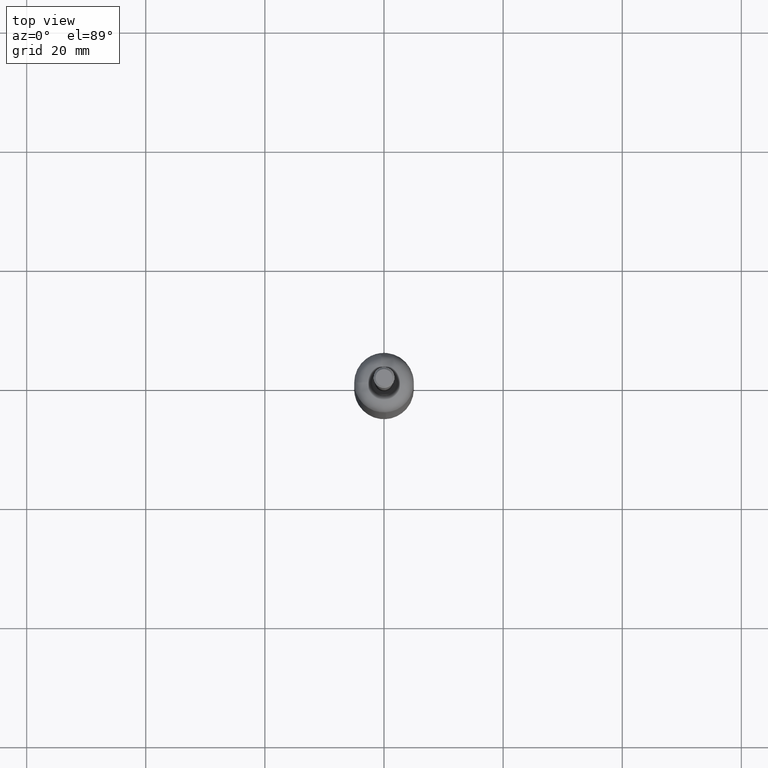
[diagram: clean part render]
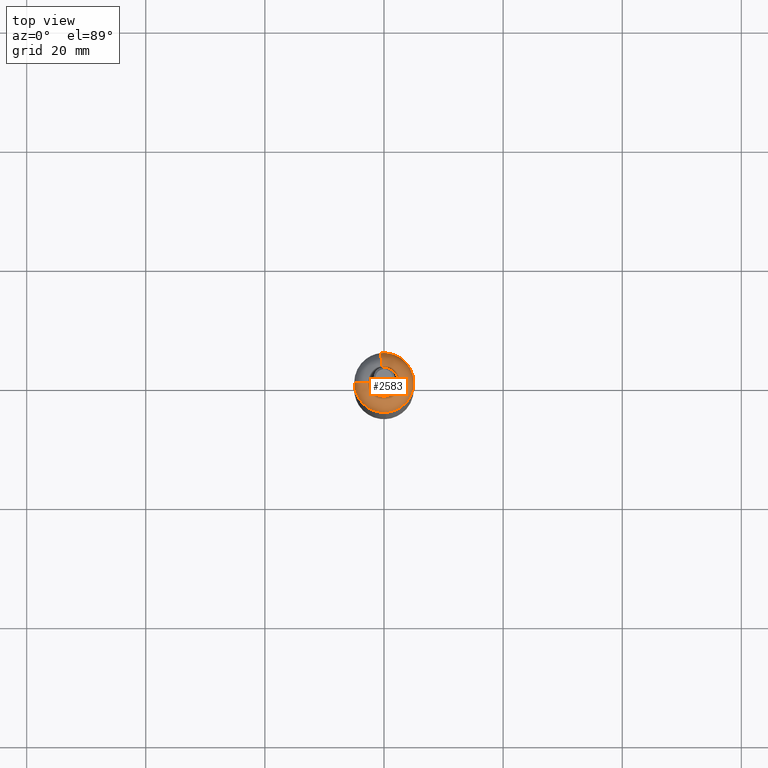
[diagram: same view with one face highlighted and labeled with its STEP entity id]
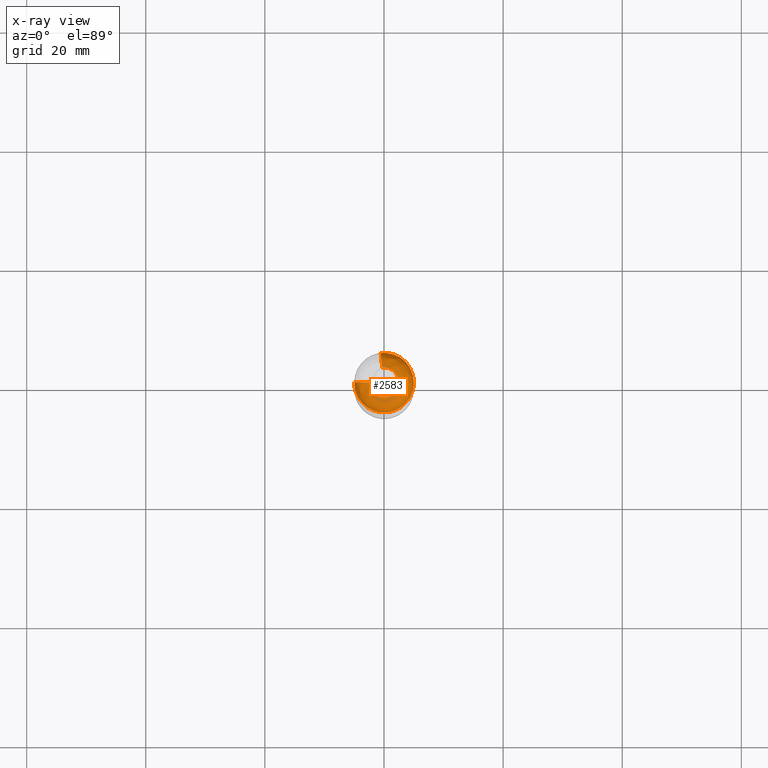
[diagram: x-ray of the same camera — body ghosted, the highlighted face saturated]
A machine part, top view. The second image highlights one B-rep face of the part: STEP entity #2583.
The next image is the same camera in x-ray: the body ghosted, the highlighted face saturated — about 0% of this face is hidden behind the body in this view.
In plain terms, the highlighted face is a freeform B-spline surface patch.
Its self-contained STEP definition (entity closure, byte-faithful):
#1226=CARTESIAN_POINT('',(-4.680717893870430,-1.758089871990486,-2.499999999999997));
#1227=VERTEX_POINT('',#1226);
#1233=CARTESIAN_POINT('',(-4.999999999999431,0.0,-2.500000000000000));
#1234=VERTEX_POINT('',#1233);
#1235=CARTESIAN_POINT('',(-4.680717893870430,-1.758089871990486,-2.499999999999997));
#1236=CARTESIAN_POINT('',(-4.999999999999429,-0.908036930369885,-2.500000000000000));
#1237=CARTESIAN_POINT('',(-4.999999999999429,0.0,-2.500000000000000));
#1245=(BOUNDED_CURVE()B_SPLINE_CURVE(2,(#1235,#1236,#1237),.UNSPECIFIED.,.F.,.U.)B_SPLINE_CURVE_WITH_KNOTS((3,3),(0.940284170896698,1.0),.UNSPECIFIED.)CURVE()GEOMETRIC_REPRESENTATION_ITEM()RATIONAL_B_SPLINE_CURVE((0.893499554633060,0.930038554399280,1.0))REPRESENTATION_ITEM(''));
#1246=EDGE_CURVE('',#1227,#1234,#1245,.T.);
#1248=CARTESIAN_POINT('',(-0.577321146855357,4.966558193899434,-2.500000000000139));
#1249=VERTEX_POINT('',#1248);
#1263=CARTESIAN_POINT('',(4.999999999999812,0.0,-2.500000000000000));
#1264=VERTEX_POINT('',#1263);
#1265=CARTESIAN_POINT('',(-0.577321146855357,4.966558193899435,-2.500000000000140));
#1266=CARTESIAN_POINT('',(-0.289629145711622,4.999999999999620,-2.500000000000000));
#1267=CARTESIAN_POINT('',(1.918465E-013,4.999999999999620,-2.500000000000000));
#1268=CARTESIAN_POINT('',(4.999999999999812,4.999999999999621,-2.500000000000000));
#1269=CARTESIAN_POINT('',(4.999999999999812,0.0,-2.500000000000000));
#1277=(BOUNDED_CURVE()B_SPLINE_CURVE(2,(#1265,#1266,#1267,#1268,#1269),.UNSPECIFIED.,.F.,.U.)B_SPLINE_CURVE_WITH_KNOTS((3,2,3),(0.229999999984999,0.250000000000000,0.500000000000000),.UNSPECIFIED.)CURVE()GEOMETRIC_REPRESENTATION_ITEM()RATIONAL_B_SPLINE_CURVE((0.956886118161134,0.976568542477349,1.0,0.707106781186547,1.0))REPRESENTATION_ITEM(''));
#1278=EDGE_CURVE('',#1249,#1264,#1277,.T.);
#1280=CARTESIAN_POINT('',(0.305242697969079,-4.990673992090930,-2.499999999999997));
#1281=VERTEX_POINT('',#1280);
#1282=CARTESIAN_POINT('',(4.999999999999812,0.0,-2.500000000000000));
#1283=CARTESIAN_POINT('',(4.999999999999812,-4.703530333971701,-2.500000000000000));
#1284=CARTESIAN_POINT('',(0.305242697969079,-4.990673992090930,-2.499999999999997));
#1292=(BOUNDED_CURVE()B_SPLINE_CURVE(2,(#1282,#1283,#1284),.UNSPECIFIED.,.F.,.U.)B_SPLINE_CURVE_WITH_KNOTS((3,3),(0.500000000000000,0.739332962221595),.UNSPECIFIED.)CURVE()GEOMETRIC_REPRESENTATION_ITEM()RATIONAL_B_SPLINE_CURVE((1.0,0.719603993307035,0.976072041629537))REPRESENTATION_ITEM(''));
#1293=EDGE_CURVE('',#1264,#1281,#1292,.T.);
#1380=CARTESIAN_POINT('',(0.305242697969079,-4.990673992090930,-2.499999999999997));
#1381=CARTESIAN_POINT('',(0.152763816788578,-4.999999999999620,-2.500000000000000));
#1382=CARTESIAN_POINT('',(1.918465E-013,-4.999999999999620,-2.500000000000000));
#1383=CARTESIAN_POINT('',(-3.463047978419839,-4.999999999999620,-2.500000000000000));
#1384=CARTESIAN_POINT('',(-4.680717893870430,-1.758089871990485,-2.499999999999997));
#1392=(BOUNDED_CURVE()B_SPLINE_CURVE(2,(#1380,#1381,#1382,#1383,#1384),.UNSPECIFIED.,.F.,.U.)B_SPLINE_CURVE_WITH_KNOTS((3,2,3),(0.739332962221596,0.750000000000000,0.940284170896697),.UNSPECIFIED.)CURVE()GEOMETRIC_REPRESENTATION_ITEM()RATIONAL_B_SPLINE_CURVE((0.976072041629539,0.987502787879514,1.0,0.777068226787269,0.893499554633059))REPRESENTATION_ITEM(''));
#1393=EDGE_CURVE('',#1281,#1227,#1392,.T.);
#2444=CARTESIAN_POINT('',(-0.576580222107881,4.960185261021200,-2.678991983864062));
#2445=CARTESIAN_POINT('',(-0.577321024131659,4.966558208165047,-2.589610978206969));
#2446=CARTESIAN_POINT('',(-0.577321024131659,4.966558208165047,-2.500000000000001));
#2447=CARTESIAN_POINT('',(-0.577321024131660,4.966558208165048,-0.000000684886195));
#2448=CARTESIAN_POINT('',(-0.288660591145563,2.483279784387861,-9.369274E-014));
#2449=CARTESIAN_POINT('',(-0.278313680682867,2.394267725343367,0.000000024549357));
#2450=CARTESIAN_POINT('',(-0.267993324000376,2.305484102280803,-0.006415871747683));
#2451=CARTESIAN_POINT('',(-0.289257439762559,4.993584141293519,-2.678991983864063));
#2452=CARTESIAN_POINT('',(-0.289629083618094,4.999999999999624,-2.589610978206970));
#2453=CARTESIAN_POINT('',(-0.289629083618094,4.999999999999623,-2.500000000000001));
#2454=CARTESIAN_POINT('',(-0.289629083618094,4.999999999999625,-0.000000684886195));
#2455=CARTESIAN_POINT('',(-0.144814581481538,2.500000684885913,-9.368448E-014));
#2456=CARTESIAN_POINT('',(-0.139623767237249,2.410389272602302,0.000000024549357));
#2457=CARTESIAN_POINT('',(-0.134446274432343,2.321007834450025,-0.006415871747683));
#2458=CARTESIAN_POINT('',(1.916869E-013,4.993584141293519,-2.678991983864062));
#2459=CARTESIAN_POINT('',(1.916869E-013,4.999999999999625,-2.589610978206970));
#2460=CARTESIAN_POINT('',(1.916869E-013,4.999999999999624,-2.500000000000000));
#2461=CARTESIAN_POINT('',(1.916869E-013,4.999999999999626,-0.000000684886195));
#2462=CARTESIAN_POINT('',(1.916869E-013,2.500000684885913,-9.367507E-014));
#2463=CARTESIAN_POINT('',(1.916869E-013,2.410389272602303,0.000000024549357));
#2464=CARTESIAN_POINT('',(1.916869E-013,2.321007834450025,-0.006415871747683));
#2465=CARTESIAN_POINT('',(4.993584141293711,4.993584141293519,-2.678991983864062));
#2466=CARTESIAN_POINT('',(4.999999999999816,4.999999999999625,-2.589610978206970));
#2467=CARTESIAN_POINT('',(4.999999999999816,4.999999999999624,-2.500000000000000));
#2468=CARTESIAN_POINT('',(4.999999999999817,4.999999999999625,-0.000000684886195));
#2469=CARTESIAN_POINT('',(2.500000684886105,2.500000684885914,-9.383756E-014));
#2470=CARTESIAN_POINT('',(2.410389272602495,2.410389272602303,0.000000024549357));
#2471=CARTESIAN_POINT('',(2.321007834450217,2.321007834450025,-0.006415871747684));
#2472=CARTESIAN_POINT('',(4.993584141293709,0.0,-2.678991983864062));
#2473=CARTESIAN_POINT('',(4.999999999999816,0.0,-2.589610978206970));
#2474=CARTESIAN_POINT('',(4.999999999999816,0.0,-2.500000000000000));
#2475=CARTESIAN_POINT('',(4.999999999999818,0.0,-0.000000684886195));
#2476=CARTESIAN_POINT('',(2.500000684886105,0.0,-9.367507E-014));
#2477=CARTESIAN_POINT('',(2.410389272602494,0.0,0.000000024549357));
#2478=CARTESIAN_POINT('',(2.321007834450216,0.0,-0.006415871747683));
#2479=CARTESIAN_POINT('',(4.993584141293711,-4.993584141293519,-2.678991983864062));
#2480=CARTESIAN_POINT('',(4.999999999999816,-4.999999999999625,-2.589610978206970));
#2481=CARTESIAN_POINT('',(4.999999999999816,-4.999999999999624,-2.500000000000000));
#2482=CARTESIAN_POINT('',(4.999999999999817,-4.999999999999625,-0.000000684886195));
#2483=CARTESIAN_POINT('',(2.500000684886105,-2.500000684885914,-9.383756E-014));
#2484=CARTESIAN_POINT('',(2.410389272602495,-2.410389272602303,0.000000024549357));
#2485=CARTESIAN_POINT('',(2.321007834450217,-2.321007834450025,-0.006415871747684));
#2486=CARTESIAN_POINT('',(1.916869E-013,-4.993584141293519,-2.678991983864062));
#2487=CARTESIAN_POINT('',(1.916869E-013,-4.999999999999625,-2.589610978206970));
#2488=CARTESIAN_POINT('',(1.916869E-013,-4.999999999999624,-2.500000000000000));
#2489=CARTESIAN_POINT('',(1.916869E-013,-4.999999999999626,-0.000000684886195));
#2490=CARTESIAN_POINT('',(1.916869E-013,-2.500000684885913,-9.367507E-014));
#2491=CARTESIAN_POINT('',(1.916869E-013,-2.410389272602303,0.000000024549357));
#2492=CARTESIAN_POINT('',(1.916869E-013,-2.321007834450025,-0.006415871747683));
#2493=CARTESIAN_POINT('',(-4.993584141293326,-4.993584141293519,-2.678991983864062));
#2494=CARTESIAN_POINT('',(-4.999999999999432,-4.999999999999625,-2.589610978206970));
#2495=CARTESIAN_POINT('',(-4.999999999999432,-4.999999999999624,-2.500000000000000));
#2496=CARTESIAN_POINT('',(-4.999999999999433,-4.999999999999625,-0.000000684886195));
#2497=CARTESIAN_POINT('',(-2.500000684885722,-2.500000684885914,-9.383756E-014));
#2498=CARTESIAN_POINT('',(-2.410389272602111,-2.410389272602303,0.000000024549357));
#2499=CARTESIAN_POINT('',(-2.321007834449834,-2.321007834450025,-0.006415871747684));
#2500=CARTESIAN_POINT('',(-4.993584141293327,0.0,-2.678991983864062));
#2501=CARTESIAN_POINT('',(-4.999999999999432,0.0,-2.589610978206970));
#2502=CARTESIAN_POINT('',(-4.999999999999433,0.0,-2.500000000000000));
#2503=CARTESIAN_POINT('',(-4.999999999999432,0.0,-0.000000684886195));
#2504=CARTESIAN_POINT('',(-2.500000684885722,0.0,-9.367507E-014));
#2505=CARTESIAN_POINT('',(-2.410389272602111,0.0,0.000000024549357));
#2506=CARTESIAN_POINT('',(-2.321007834449833,0.0,-0.006415871747683));
#2514=(BOUNDED_SURFACE()B_SPLINE_SURFACE(2,2,((#2444,#2451,#2458,#2465,#2472,#2479,#2486,#2493,#2500),(#2445,#2452,#2459,#2466,#2473,#2480,#2487,#2494,#2501),(#2446,#2453,#2460,#2467,#2474,#2481,#2488,#2495,#2502),(#2447,#2454,#2461,#2468,#2475,#2482,#2489,#2496,#2503),(#2448,#2455,#2462,#2469,#2476,#2483,#2490,#2497,#2504),(#2449,#2456,#2463,#2470,#2477,#2484,#2491,#2498,#2505),(#2450,#2457,#2464,#2471,#2478,#2485,#2492,#2499,#2506)),.UNSPECIFIED.,.F.,.F.,.U.)B_SPLINE_SURFACE_WITH_KNOTS((3,2,2,3),(3,2,2,2,3),(0.0,0.206899683654488,4.349034504991264,4.555935176207651),(0.0,0.662741561538210,8.947012808999489,17.231284056460769,25.515555303922049),.UNSPECIFIED.)GEOMETRIC_REPRESENTATION_ITEM()RATIONAL_B_SPLINE_SURFACE(((0.930286136011231,0.949421415388666,0.972201508980413,0.687450279679844,0.972201508980413,0.687450279679844,0.972201508980413,0.687450279679844,0.972201508980413),(0.942886868087450,0.962281334954954,0.985369985070236,0.696761798420851,0.985369985070236,0.696761798420851,0.985369985070236,0.696761798420851,0.985369985070236),(0.956886126402807,0.976568547383107,1.0,0.707106781186548,1.0,0.707106781186548,1.0,0.707106781186548,1.0),(0.676620761484390,0.690538336736119,0.707106878044089,0.500000068488624,0.707106878044089,0.500000068488624,0.707106878044089,0.500000068488624,0.707106878044089),(0.956886126402807,0.976568547383107,1.0,0.707106781186548,1.0,0.707106781186548,1.0,0.707106781186548,1.0),(0.942886801266980,0.962281266760037,0.985369915239074,0.696761749042763,0.985369915239074,0.696761749042763,0.985369915239074,0.696761749042763,0.985369915239074),(0.930286015721056,0.949421292624213,0.972201383270392,0.687450190789436,0.972201383270392,0.687450190789436,0.972201383270392,0.687450190789436,0.972201383270392)))REPRESENTATION_ITEM('')SURFACE());
#2515=ORIENTED_EDGE('',*,*,#1278,.F.);
#2516=CARTESIAN_POINT('',(-0.288660573803570,2.483279097338244,6.047770E-017));
#2517=VERTEX_POINT('',#2516);
#2518=CARTESIAN_POINT('',(-0.577321146855357,4.966558193899434,-2.500000000000139));
#2519=CARTESIAN_POINT('',(-0.577321146635166,4.966558193925312,-8.591317E-010));
#2520=CARTESIAN_POINT('',(-0.288660573803570,2.483279097338243,6.047770E-017));
#2528=(BOUNDED_CURVE()B_SPLINE_CURVE(2,(#2518,#2519,#2520),.UNSPECIFIED.,.F.,.U.)B_SPLINE_CURVE_WITH_KNOTS((3,3),(0.499999999999980,0.750000048368033),.UNSPECIFIED.)CURVE()GEOMETRIC_REPRESENTATION_ITEM()RATIONAL_B_SPLINE_CURVE((0.956886118190704,0.676620701453964,0.956886226637756))REPRESENTATION_ITEM(''));
#2529=EDGE_CURVE('',#1249,#2517,#2528,.T.);
#2530=ORIENTED_EDGE('',*,*,#2529,.T.);
#2531=CARTESIAN_POINT('',(2.499999999999817,0.0,0.0));
#2532=VERTEX_POINT('',#2531);
#2533=CARTESIAN_POINT('',(-0.288660573803570,2.483279097338243,6.047770E-017));
#2534=CARTESIAN_POINT('',(-0.144814573185419,2.499999999999625,0.0));
#2535=CARTESIAN_POINT('',(1.918465E-013,2.499999999999625,0.0));
#2536=CARTESIAN_POINT('',(2.499999999999817,2.499999999999624,0.0));
#2537=CARTESIAN_POINT('',(2.499999999999817,0.0,0.0));
#2545=(BOUNDED_CURVE()B_SPLINE_CURVE(2,(#2533,#2534,#2535,#2536,#2537),.UNSPECIFIED.,.F.,.U.)B_SPLINE_CURVE_WITH_KNOTS((3,2,3),(0.229999999940530,0.250000000000000,0.500000000000000),.UNSPECIFIED.)CURVE()GEOMETRIC_REPRESENTATION_ITEM()RATIONAL_B_SPLINE_CURVE((0.956886118073608,0.976568542425250,1.0,0.707106781186547,1.0))REPRESENTATION_ITEM(''));
#2546=EDGE_CURVE('',#2517,#2532,#2545,.T.);
#2547=ORIENTED_EDGE('',*,*,#2546,.T.);
#2548=CARTESIAN_POINT('',(-2.500000342442577,0.0,-4.683753E-014));
#2549=VERTEX_POINT('',#2548);
#2550=CARTESIAN_POINT('',(2.499999999999817,0.0,0.0));
#2551=CARTESIAN_POINT('',(2.499999999999817,-2.499999999999624,0.0));
#2552=CARTESIAN_POINT('',(1.918465E-013,-2.499999999999625,0.0));
#2553=CARTESIAN_POINT('',(-2.499999999999433,-2.499999999999624,0.0));
#2554=CARTESIAN_POINT('',(-2.500000342442577,0.0,-4.683753E-014));
#2562=(BOUNDED_CURVE()B_SPLINE_CURVE(2,(#2550,#2551,#2552,#2553,#2554),.UNSPECIFIED.,.F.,.U.)B_SPLINE_CURVE_WITH_KNOTS((3,2,3),(0.500000000000000,0.750000000000000,1.0),.UNSPECIFIED.)CURVE()GEOMETRIC_REPRESENTATION_ITEM()RATIONAL_B_SPLINE_CURVE((1.0,0.707106781186547,1.0,0.707106781186547,1.0))REPRESENTATION_ITEM(''));
#2563=EDGE_CURVE('',#2532,#2549,#2562,.T.);
#2564=ORIENTED_EDGE('',*,*,#2563,.T.);
#2565=CARTESIAN_POINT('',(-4.999999999999433,0.0,-2.500000000000000));
#2566=CARTESIAN_POINT('',(-4.999999999999433,0.0,-0.000000684886207));
#2567=CARTESIAN_POINT('',(-2.500000342442578,0.0,-4.683753E-014));
#2575=(BOUNDED_CURVE()B_SPLINE_CURVE(2,(#2565,#2566,#2567),.UNSPECIFIED.,.F.,.U.)B_SPLINE_CURVE_WITH_KNOTS((3,3),(0.500000000000000,0.749999999999999),.UNSPECIFIED.)CURVE()GEOMETRIC_REPRESENTATION_ITEM()RATIONAL_B_SPLINE_CURVE((1.0,0.707106878044090,0.999999999999998))REPRESENTATION_ITEM(''));
#2576=EDGE_CURVE('',#1234,#2549,#2575,.T.);
#2577=ORIENTED_EDGE('',*,*,#2576,.F.);
#2578=ORIENTED_EDGE('',*,*,#1246,.F.);
#2579=ORIENTED_EDGE('',*,*,#1393,.F.);
#2580=ORIENTED_EDGE('',*,*,#1293,.F.);
#2581=EDGE_LOOP('',(#2515,#2530,#2547,#2564,#2577,#2578,#2579,#2580));
#2582=FACE_OUTER_BOUND('',#2581,.T.);
#2583=ADVANCED_FACE('',(#2582),#2514,.T.);